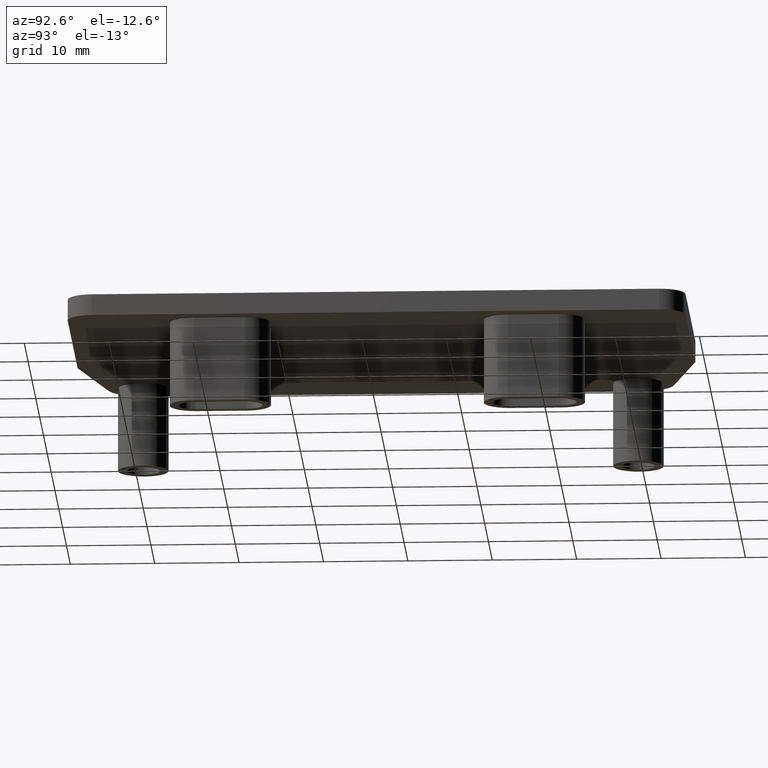
[diagram: clean part render]
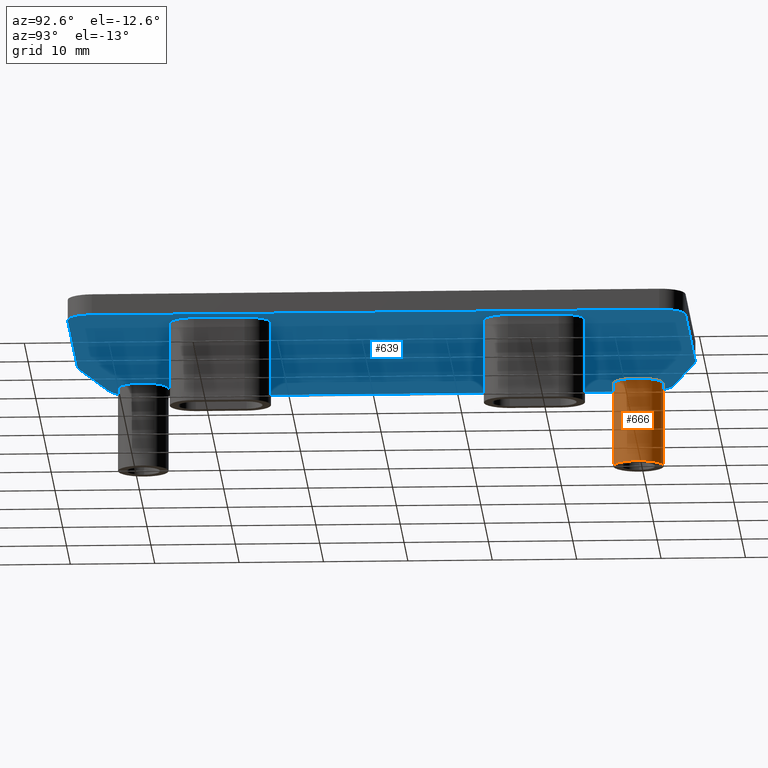
[diagram: same view with the hole feature highlighted: cylindrical wall and planar end face, labeled with their STEP entity ids]
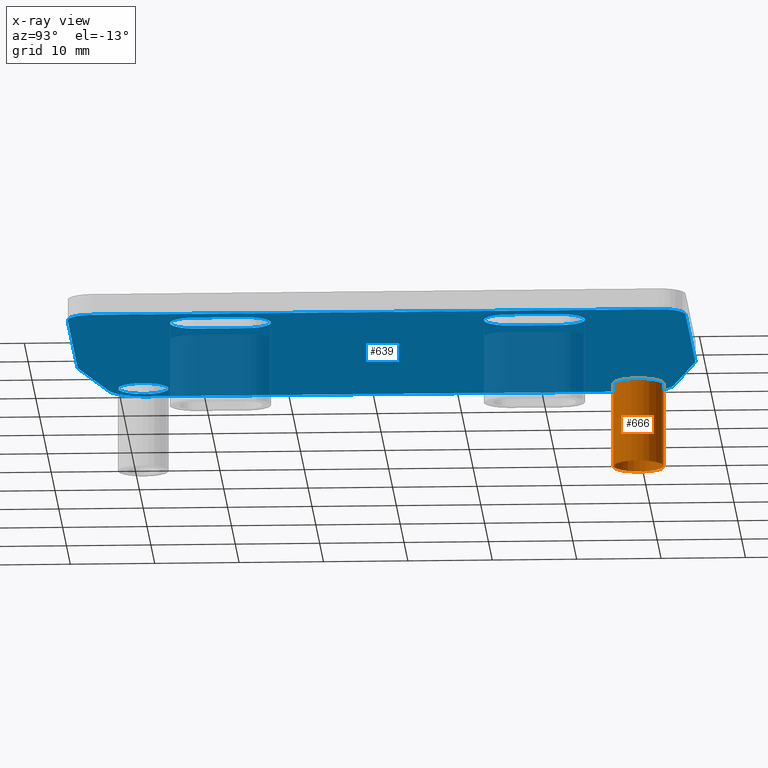
[diagram: x-ray of the same camera — body ghosted, the hole faces saturated]
A machine part, auxiliary view. The highlighted faces form one hole feature of diameter 6 mm: the cylindrical wall (entity #666, orange) and its adjacent planar end face (entity #639, blue) — they share a circular edge in the B-rep.
The next image is the same camera in x-ray (body ghosted, the hole faces saturated) — the bore reads through the body.
Wall:
#36=CIRCLE('',#716,2.99999999998727);
#53=CIRCLE('',#760,2.99999999998727);
#69=CYLINDRICAL_SURFACE('',#759,2.99999999998727);
#108=FACE_OUTER_BOUND('',#155,.T.);
#155=EDGE_LOOP('',(#595,#596,#597,#598));
#215=LINE('',#1153,#273);
#273=VECTOR('',#960,2.99999999998727);
#304=VERTEX_POINT('',#1048);
#333=VERTEX_POINT('',#1151);
#374=EDGE_CURVE('',#304,#304,#36,.T.);
#421=EDGE_CURVE('',#333,#333,#53,.T.);
#422=EDGE_CURVE('',#333,#304,#215,.T.);
#595=ORIENTED_EDGE('',*,*,#421,.F.);
#596=ORIENTED_EDGE('',*,*,#422,.T.);
#597=ORIENTED_EDGE('',*,*,#374,.T.);
#598=ORIENTED_EDGE('',*,*,#422,.F.);
#666=ADVANCED_FACE('',(#108),#69,.T.);
#716=AXIS2_PLACEMENT_3D('',#1049,#840,#841);
#759=AXIS2_PLACEMENT_3D('',#1150,#956,#957);
#760=AXIS2_PLACEMENT_3D('',#1152,#958,#959);
#840=DIRECTION('center_axis',(0.,0.,-1.));
#841=DIRECTION('ref_axis',(1.,0.,0.));
#956=DIRECTION('center_axis',(0.,0.,-1.));
#957=DIRECTION('ref_axis',(1.,0.,0.));
#958=DIRECTION('center_axis',(0.,0.,-1.));
#959=DIRECTION('ref_axis',(1.,0.,0.));
#960=DIRECTION('',(0.,0.,1.));
#1048=CARTESIAN_POINT('',(1.29999999999563,29.3349999998827,0.));
#1049=CARTESIAN_POINT('Origin',(4.2999999999829,29.3349999998827,0.));
#1150=CARTESIAN_POINT('Origin',(4.2999999999829,29.3349999998827,0.));
#1151=CARTESIAN_POINT('',(1.29999999999563,29.3349999998827,-10.));
#1152=CARTESIAN_POINT('Origin',(4.2999999999829,29.3349999998827,-10.));
#1153=CARTESIAN_POINT('',(1.29999999999564,29.3349999998827,0.));
End face:
#15=FACE_BOUND('',#122,.T.);
#16=FACE_BOUND('',#123,.T.);
#17=FACE_BOUND('',#124,.T.);
#18=FACE_BOUND('',#125,.T.);
#23=CIRCLE('',#694,2.99999999998909);
#25=CIRCLE('',#699,4.29673551604732);
#27=CIRCLE('',#703,4.29999999996835);
#29=CIRCLE('',#708,2.99999999998545);
#31=CIRCLE('',#711,2.99999999999272);
#32=CIRCLE('',#712,2.99999999999182);
#33=CIRCLE('',#713,2.99999999999182);
#34=CIRCLE('',#714,2.99999999999272);
#35=CIRCLE('',#715,2.99999999998727);
#36=CIRCLE('',#716,2.99999999998727);
#81=FACE_OUTER_BOUND('',#121,.T.);
#121=EDGE_LOOP('',(#465,#466,#467,#468,#469,#470,#471,#472,#473,#474));
#122=EDGE_LOOP('',(#475,#476,#477,#478));
#123=EDGE_LOOP('',(#479,#480,#481,#482));
#124=EDGE_LOOP('',(#483));
#125=EDGE_LOOP('',(#484));
#159=LINE('',#972,#217);
#164=LINE('',#986,#222);
#167=LINE('',#992,#225);
#171=LINE('',#1004,#229);
#175=LINE('',#1016,#233);
#178=LINE('',#1022,#236);
#181=LINE('',#1034,#239);
#182=LINE('',#1037,#240);
#183=LINE('',#1042,#241);
#184=LINE('',#1045,#242);
#217=VECTOR('',#768,67.2119999997303);
#222=VECTOR('',#781,25.7499999998945);
#225=VECTOR('',#786,12.8672123176387);
#229=VECTOR('',#798,58.6699999997654);
#233=VECTOR('',#810,12.8346385930391);
#236=VECTOR('',#815,25.7828573274437);
#239=VECTOR('',#828,5.99999999997453);
#240=VECTOR('',#831,5.99999999997453);
#241=VECTOR('',#834,5.99999999997453);
#242=VECTOR('',#837,5.99999999997453);
#275=VERTEX_POINT('',#970);
#276=VERTEX_POINT('',#971);
#279=VERTEX_POINT('',#979);
#281=VERTEX_POINT('',#985);
#283=VERTEX_POINT('',#991);
#285=VERTEX_POINT('',#997);
#287=VERTEX_POINT('',#1003);
#289=VERTEX_POINT('',#1009);
#291=VERTEX_POINT('',#1015);
#293=VERTEX_POINT('',#1021);
#295=VERTEX_POINT('',#1030);
#296=VERTEX_POINT('',#1031);
#297=VERTEX_POINT('',#1033);
#298=VERTEX_POINT('',#1035);
#299=VERTEX_POINT('',#1038);
#300=VERTEX_POINT('',#1039);
#301=VERTEX_POINT('',#1041);
#302=VERTEX_POINT('',#1043);
#303=VERTEX_POINT('',#1046);
#304=VERTEX_POINT('',#1048);
#335=EDGE_CURVE('',#275,#276,#159,.T.);
#339=EDGE_CURVE('',#276,#279,#23,.T.);
#342=EDGE_CURVE('',#279,#281,#164,.T.);
#345=EDGE_CURVE('',#281,#283,#167,.T.);
#348=EDGE_CURVE('',#283,#285,#25,.T.);
#351=EDGE_CURVE('',#285,#287,#171,.T.);
#354=EDGE_CURVE('',#287,#289,#27,.T.);
#357=EDGE_CURVE('',#289,#291,#175,.T.);
#360=EDGE_CURVE('',#291,#293,#178,.T.);
#363=EDGE_CURVE('',#293,#275,#29,.T.);
#365=EDGE_CURVE('',#295,#296,#31,.T.);
#366=EDGE_CURVE('',#297,#295,#181,.T.);
#367=EDGE_CURVE('',#298,#297,#32,.T.);
#368=EDGE_CURVE('',#296,#298,#182,.T.);
#369=EDGE_CURVE('',#299,#300,#33,.T.);
#370=EDGE_CURVE('',#301,#299,#183,.T.);
#371=EDGE_CURVE('',#302,#301,#34,.T.);
#372=EDGE_CURVE('',#300,#302,#184,.T.);
#373=EDGE_CURVE('',#303,#303,#35,.T.);
#374=EDGE_CURVE('',#304,#304,#36,.T.);
#465=ORIENTED_EDGE('',*,*,#363,.F.);
#466=ORIENTED_EDGE('',*,*,#360,.F.);
#467=ORIENTED_EDGE('',*,*,#357,.F.);
#468=ORIENTED_EDGE('',*,*,#354,.F.);
#469=ORIENTED_EDGE('',*,*,#351,.F.);
#470=ORIENTED_EDGE('',*,*,#348,.F.);
#471=ORIENTED_EDGE('',*,*,#345,.F.);
#472=ORIENTED_EDGE('',*,*,#342,.F.);
#473=ORIENTED_EDGE('',*,*,#339,.F.);
#474=ORIENTED_EDGE('',*,*,#335,.F.);
#475=ORIENTED_EDGE('',*,*,#365,.F.);
#476=ORIENTED_EDGE('',*,*,#366,.F.);
#477=ORIENTED_EDGE('',*,*,#367,.F.);
#478=ORIENTED_EDGE('',*,*,#368,.F.);
#479=ORIENTED_EDGE('',*,*,#369,.F.);
#480=ORIENTED_EDGE('',*,*,#370,.F.);
#481=ORIENTED_EDGE('',*,*,#371,.F.);
#482=ORIENTED_EDGE('',*,*,#372,.F.);
#483=ORIENTED_EDGE('',*,*,#373,.F.);
#484=ORIENTED_EDGE('',*,*,#374,.F.);
#611=PLANE('',#710);
#639=ADVANCED_FACE('',(#81,#15,#16,#17,#18),#611,.F.);
#694=AXIS2_PLACEMENT_3D('',#980,#774,#775);
#699=AXIS2_PLACEMENT_3D('',#998,#791,#792);
#703=AXIS2_PLACEMENT_3D('',#1010,#803,#804);
#708=AXIS2_PLACEMENT_3D('',#1027,#820,#821);
#710=AXIS2_PLACEMENT_3D('',#1029,#824,#825);
#711=AXIS2_PLACEMENT_3D('',#1032,#826,#827);
#712=AXIS2_PLACEMENT_3D('',#1036,#829,#830);
#713=AXIS2_PLACEMENT_3D('',#1040,#832,#833);
#714=AXIS2_PLACEMENT_3D('',#1044,#835,#836);
#715=AXIS2_PLACEMENT_3D('',#1047,#838,#839);
#716=AXIS2_PLACEMENT_3D('',#1049,#840,#841);
#768=DIRECTION('',(0.,1.,0.));
#774=DIRECTION('center_axis',(0.,0.,1.));
#775=DIRECTION('ref_axis',(1.,0.,0.));
#781=DIRECTION('',(-1.,0.,0.));
#786=DIRECTION('',(-0.970528039880192,-0.240988223376814,0.));
#791=DIRECTION('center_axis',(0.,0.,1.));
#792=DIRECTION('ref_axis',(-0.240801328009108,0.970574428072907,0.));
#798=DIRECTION('',(0.,-1.,0.));
#803=DIRECTION('center_axis',(0.,0.,1.));
#804=DIRECTION('ref_axis',(-1.,0.,0.));
#810=DIRECTION('',(0.970431203906118,-0.24137787488774,0.));
#815=DIRECTION('',(1.,0.,0.));
#820=DIRECTION('center_axis',(0.,0.,1.));
#821=DIRECTION('ref_axis',(1.21266E-12,-1.,0.));
#824=DIRECTION('center_axis',(0.,0.,1.));
#825=DIRECTION('ref_axis',(1.,0.,0.));
#826=DIRECTION('center_axis',(0.,0.,-1.));
#827=DIRECTION('ref_axis',(1.,0.,0.));
#828=DIRECTION('',(0.,-1.,0.));
#829=DIRECTION('center_axis',(0.,0.,-1.));
#830=DIRECTION('ref_axis',(1.,0.,0.));
#831=DIRECTION('',(0.,1.,0.));
#832=DIRECTION('center_axis',(0.,0.,-1.));
#833=DIRECTION('ref_axis',(1.,-1.509903E-13,0.));
#834=DIRECTION('',(-3.03460960065497E-13,-1.,0.));
#835=DIRECTION('center_axis',(0.,0.,-1.));
#836=DIRECTION('ref_axis',(1.,0.,0.));
#837=DIRECTION('',(0.,1.,0.));
#838=DIRECTION('center_axis',(0.,0.,-1.));
#839=DIRECTION('ref_axis',(1.,0.,0.));
#840=DIRECTION('center_axis',(0.,0.,-1.));
#841=DIRECTION('ref_axis',(1.,0.,0.));
#970=CARTESIAN_POINT('',(44.500066246932,-33.6058519651997,0.));
#971=CARTESIAN_POINT('',(44.500066246932,33.6061480345306,0.));
#972=CARTESIAN_POINT('',(44.500066246932,-33.6058519651997,0.));
#979=CARTESIAN_POINT('',(41.5000662469429,36.6061480345197,0.));
#980=CARTESIAN_POINT('Origin',(41.5000662469429,33.6061480345306,0.));
#985=CARTESIAN_POINT('',(15.7500662470484,36.6061480345197,0.));
#986=CARTESIAN_POINT('',(41.5000662469429,36.6061480345197,0.));
#991=CARTESIAN_POINT('',(3.26207589768819,33.5053013982797,0.));
#992=CARTESIAN_POINT('',(15.7500662470484,36.6061480345197,0.));
#997=CARTESIAN_POINT('',(0.,29.3349999998827,0.));
#998=CARTESIAN_POINT('Origin',(4.29673551605629,29.3349997822115,0.));
#1003=CARTESIAN_POINT('',(0.,-29.3349999998827,0.));
#1004=CARTESIAN_POINT('',(0.,29.3349999998827,0.));
#1009=CARTESIAN_POINT('',(3.26207513795816,-33.5078541766488,0.));
#1010=CARTESIAN_POINT('Origin',(4.29999999996835,-29.3349999998827,0.));
#1015=CARTESIAN_POINT('',(15.717208919501,-36.6058519651888,0.));
#1016=CARTESIAN_POINT('',(3.26207513795816,-33.5078541766488,0.));
#1021=CARTESIAN_POINT('',(41.5000662469447,-36.6058519651888,0.));
#1022=CARTESIAN_POINT('',(15.717208919501,-36.6058519651888,0.));
#1027=CARTESIAN_POINT('Origin',(41.5000662469411,-33.6058519652033,0.));
#1029=CARTESIAN_POINT('Origin',(-4.45001139777014,-43.92705673807,0.));
#1030=CARTESIAN_POINT('',(42.4999999998345,15.6059999999379,0.));
#1031=CARTESIAN_POINT('',(36.4999999998508,15.6059999999379,0.));
#1032=CARTESIAN_POINT('Origin',(39.4999999998418,15.6059999999379,0.));
#1033=CARTESIAN_POINT('',(42.4999999998345,21.6059999999125,0.));
#1034=CARTESIAN_POINT('',(42.4999999998345,21.6059999999125,0.));
#1035=CARTESIAN_POINT('',(36.499999999849,21.6059999999125,0.));
#1036=CARTESIAN_POINT('Origin',(39.4999999998418,21.6059999999125,0.));
#1037=CARTESIAN_POINT('',(36.4999999998508,15.6059999999379,0.));
#1038=CARTESIAN_POINT('',(42.4999999998345,-21.6059999999125,0.));
#1039=CARTESIAN_POINT('',(36.4999999998508,-21.6059999999125,0.));
#1040=CARTESIAN_POINT('Origin',(39.4999999998418,-21.6059999999125,0.));
#1041=CARTESIAN_POINT('',(42.4999999998363,-15.6059999999379,0.));
#1042=CARTESIAN_POINT('',(42.4999999998363,-15.6059999999379,0.));
#1043=CARTESIAN_POINT('',(36.4999999998508,-15.6059999999379,0.));
#1044=CARTESIAN_POINT('Origin',(39.4999999998436,-15.6059999999379,0.));
#1045=CARTESIAN_POINT('',(36.4999999998508,-21.6059999999125,0.));
#1046=CARTESIAN_POINT('',(1.29999999999563,-29.3349999998827,0.));
#1047=CARTESIAN_POINT('Origin',(4.2999999999829,-29.3349999998827,0.));
#1048=CARTESIAN_POINT('',(1.29999999999563,29.3349999998827,0.));
#1049=CARTESIAN_POINT('Origin',(4.2999999999829,29.3349999998827,0.));